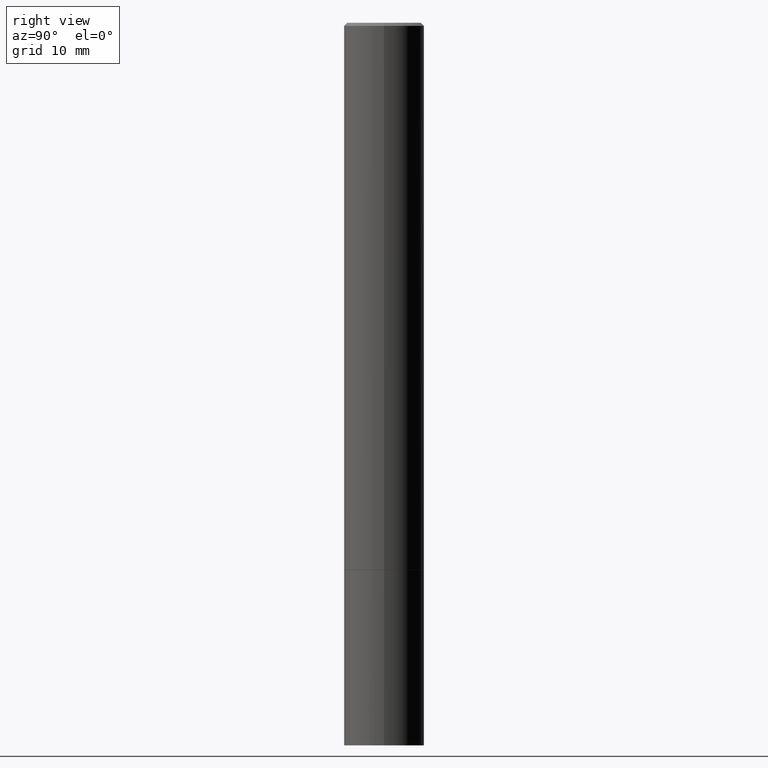
[diagram: clean part render]
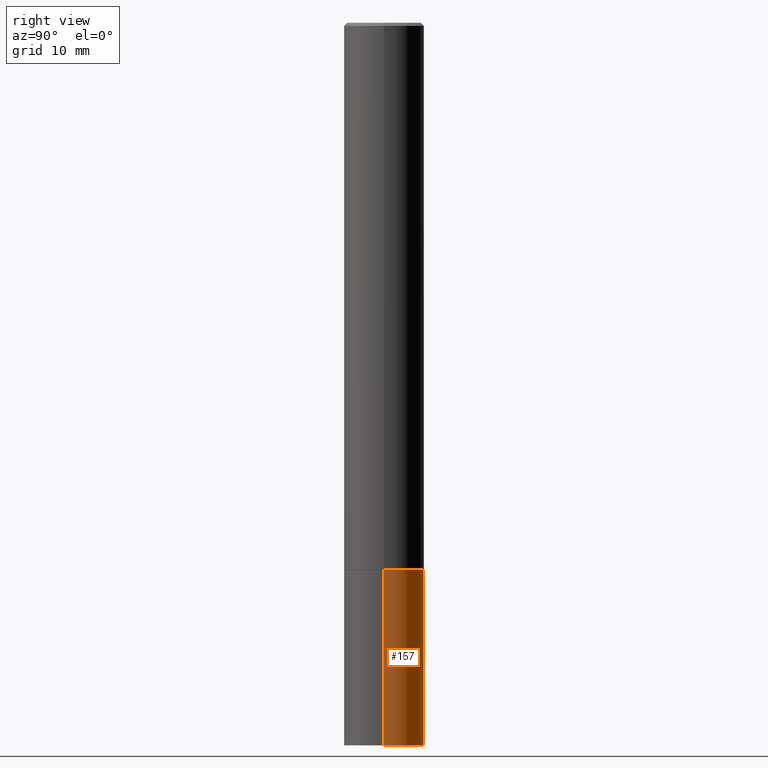
[diagram: same view with one face highlighted and labeled with its STEP entity id]
A machine part, right view. The second image highlights one B-rep face of the part: STEP entity #157.
In plain terms, the highlighted cylindrical surface (partial cylindrical patch) has radius 6.35 mm, axis along (-0, 0, 1).
Its self-contained STEP definition (entity closure, byte-faithful):
#4 = FACE_OUTER_BOUND ( 'NONE', #287, .T. ) ;
#5 = DIRECTION ( 'NONE',  ( -2.445468806185136877E-29, 3.491481338843145188E-15, 1.000000000000000000 ) ) ;
#20 = ORIENTED_EDGE ( 'NONE', *, *, #123, .F. ) ;
#28 = CARTESIAN_POINT ( 'NONE',  ( -0.2500000000000000000, -1.202721463371612651E-14, -4.500000000000000000 ) ) ;
#32 = DIRECTION ( 'NONE',  ( -2.445468806185136597E-29, 3.491481338843145583E-15, 1.000000000000000000 ) ) ;
#45 = LINE ( 'NONE', #220, #126 ) ;
#57 = CARTESIAN_POINT ( 'NONE',  ( 0.000000000000000000, 0.000000000000000000, 0.000000000000000000 ) ) ;
#58 = VERTEX_POINT ( 'NONE', #134 ) ;
#63 = CIRCLE ( 'NONE', #247, 0.2500000000000000000 ) ;
#80 = CARTESIAN_POINT ( 'NONE',  ( 0.2500000000000000000, -1.364121759086016216E-14, -3.407000000000000028 ) ) ;
#88 = VERTEX_POINT ( 'NONE', #80 ) ;
#100 = DIRECTION ( 'NONE',  ( 1.000000000000000000, -6.982962677686270655E-15, 0.000000000000000000 ) ) ;
#102 = VECTOR ( 'NONE', #5, 39.37007874015748143 ) ;
#117 = AXIS2_PLACEMENT_3D ( 'NONE', #360, #32, #151 ) ;
#123 = EDGE_CURVE ( 'NONE', #58, #88, #45, .T. ) ;
#125 = VERTEX_POINT ( 'NONE', #28 ) ;
#126 = VECTOR ( 'NONE', #304, 39.37007874015748143 ) ;
#129 = CARTESIAN_POINT ( 'NONE',  ( -0.2500000000000000000, 1.776356839400250465E-15, -1.229733772563726445E-29 ) ) ;
#134 = CARTESIAN_POINT ( 'NONE',  ( 0.2500000000000000000, -1.745740669421572357E-14, -4.500000000000000000 ) ) ;
#151 = DIRECTION ( 'NONE',  ( 1.000000000000000000, -6.982962677686262766E-15, 0.000000000000000000 ) ) ;
#157 = ADVANCED_FACE ( 'NONE', ( #4 ), #345, .T. ) ;
#173 = DIRECTION ( 'NONE',  ( -2.445468806185136597E-29, 3.491481338843145583E-15, 1.000000000000000000 ) ) ;
#179 = CARTESIAN_POINT ( 'NONE',  ( -0.2500000000000000000, -1.202721463371612651E-14, -3.407000000000000028 ) ) ;
#181 = CARTESIAN_POINT ( 'NONE',  ( 1.100460962783311469E-28, -1.571166602479415690E-14, -4.500000000000000000 ) ) ;
#183 = ORIENTED_EDGE ( 'NONE', *, *, #278, .T. ) ;
#220 = CARTESIAN_POINT ( 'NONE',  ( 0.2500000000000000000, -1.745740669421566678E-15, 1.219044193948983948E-29 ) ) ;
#224 = EDGE_CURVE ( 'NONE', #88, #233, #273, .T. ) ;
#225 = ORIENTED_EDGE ( 'NONE', *, *, #224, .F. ) ;
#233 = VERTEX_POINT ( 'NONE', #179 ) ;
#247 = AXIS2_PLACEMENT_3D ( 'NONE', #181, #326, #100 ) ;
#261 = EDGE_CURVE ( 'NONE', #125, #233, #269, .T. ) ;
#269 = LINE ( 'NONE', #129, #102 ) ;
#273 = CIRCLE ( 'NONE', #117, 0.2500000000000000000 ) ;
#278 = EDGE_CURVE ( 'NONE', #58, #125, #63, .T. ) ;
#286 = DIRECTION ( 'NONE',  ( 1.000000000000000000, -6.982962677686266711E-15, 4.876176775795935793E-29 ) ) ;
#287 = EDGE_LOOP ( 'NONE', ( #183, #337, #225, #20 ) ) ;
#304 = DIRECTION ( 'NONE',  ( -2.445468806185136877E-29, 3.491481338843145188E-15, 1.000000000000000000 ) ) ;
#326 = DIRECTION ( 'NONE',  ( -2.445468806185136597E-29, 3.491481338843145583E-15, 1.000000000000000000 ) ) ;
#331 = AXIS2_PLACEMENT_3D ( 'NONE', #57, #173, #286 ) ;
#337 = ORIENTED_EDGE ( 'NONE', *, *, #261, .T. ) ;
#345 = CYLINDRICAL_SURFACE ( 'NONE', #331, 0.2500000000000000000 ) ;
#360 = CARTESIAN_POINT ( 'NONE',  ( 8.331712222672760735E-29, -1.189547692143859706E-14, -3.407000000000000028 ) ) ;